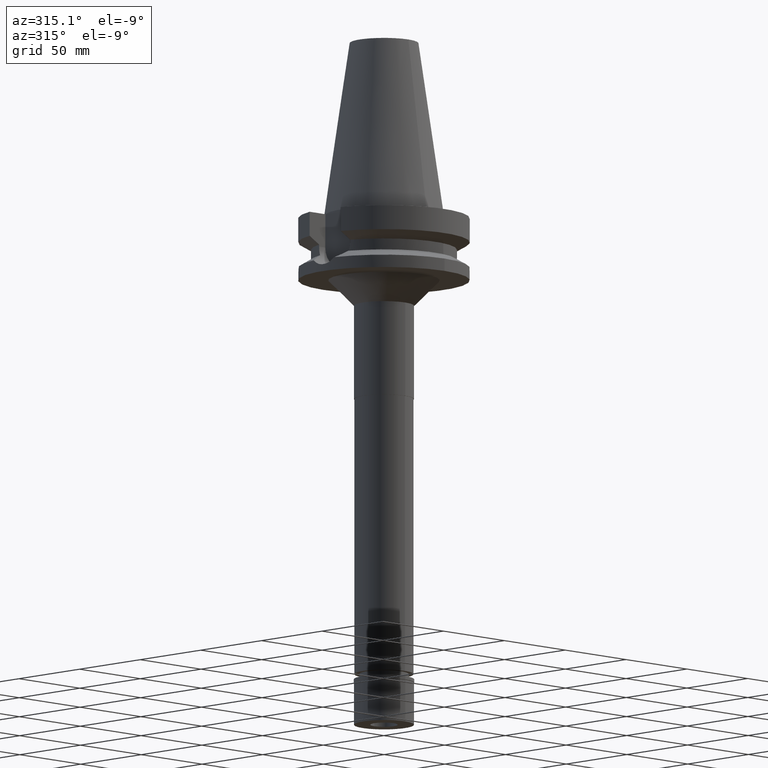
[diagram: clean part render]
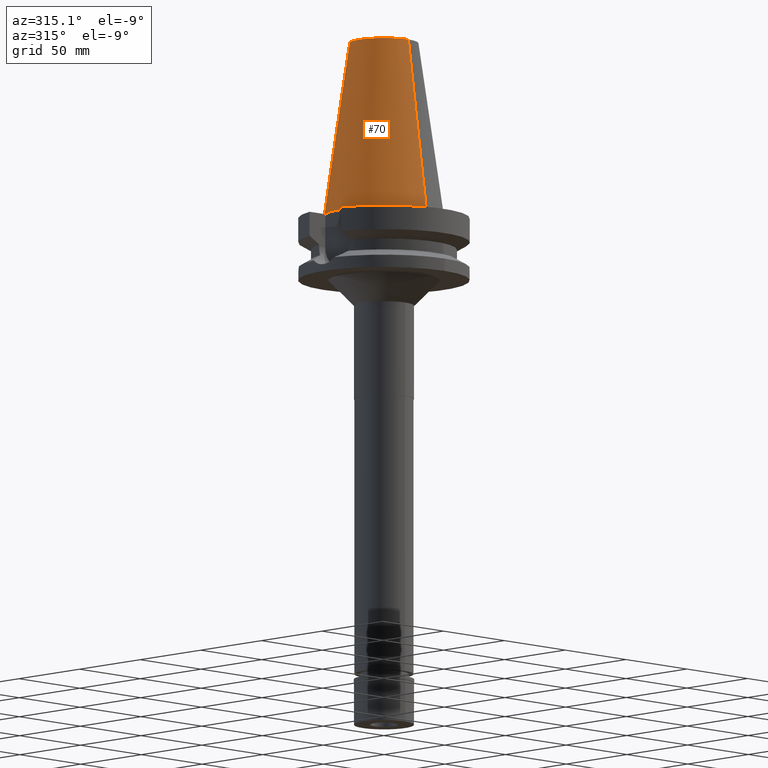
[diagram: same view with one face highlighted and labeled with its STEP entity id]
A machine part, auxiliary view. The second image highlights one B-rep face of the part: STEP entity #70.
In plain terms, the highlighted conical surface has half-angle 8.297 deg.
Its self-contained STEP definition (entity closure, byte-faithful):
#57 = ORIENTED_EDGE ( 'NONE', *, *, #1319, .T. ) ;
#70 = ADVANCED_FACE ( 'NONE', ( #1246 ), #2005, .T. ) ;
#193 = CARTESIAN_POINT ( 'NONE',  ( 0.0000000000000000000, -20.07942971896000017, 101.7999999999999972 ) ) ;
#222 = CARTESIAN_POINT ( 'NONE',  ( 0.0000000000000000000, 20.07942971896000017, 101.7999999999999972 ) ) ;
#295 = DIRECTION ( 'NONE',  ( 0.0000000000000000000, 0.1443043893538948075, -0.9895333461855641000 ) ) ;
#343 = EDGE_CURVE ( 'NONE', #2180, #1528, #2681, .T. ) ;
#434 = CARTESIAN_POINT ( 'NONE',  ( 0.0000000000000000000, -20.07942971896000017, 101.7999999999999972 ) ) ;
#470 = VECTOR ( 'NONE', #295, 1000.000000000000114 ) ;
#540 = CARTESIAN_POINT ( 'NONE',  ( 0.0000000000000000000, 20.07942971896000017, 101.7999999999999972 ) ) ;
#694 = CARTESIAN_POINT ( 'NONE',  ( 0.0000000000000000000, 1.847992019912999597E-14, 50.89999999999999858 ) ) ;
#758 = AXIS2_PLACEMENT_3D ( 'NONE', #1820, #2814, #1802 ) ;
#825 = CARTESIAN_POINT ( 'NONE',  ( 0.0000000000000000000, 1.847992019912999597E-14, 3.979039320256999774E-13 ) ) ;
#846 = AXIS2_PLACEMENT_3D ( 'NONE', #825, #2085, #851 ) ;
#851 = DIRECTION ( 'NONE',  ( 0.0000000000000000000, -1.000000000000000000, 0.0000000000000000000 ) ) ;
#856 = VERTEX_POINT ( 'NONE', #434 ) ;
#915 = LINE ( 'NONE', #193, #1555 ) ;
#1118 = CARTESIAN_POINT ( 'NONE',  ( 0.0000000000000000000, 34.92499999999999716, 5.826450433233000248E-13 ) ) ;
#1246 = FACE_OUTER_BOUND ( 'NONE', #3133, .T. ) ;
#1319 = EDGE_CURVE ( 'NONE', #856, #2636, #2693, .T. ) ;
#1528 = VERTEX_POINT ( 'NONE', #1118 ) ;
#1555 = VECTOR ( 'NONE', #2456, 1000.000000000000114 ) ;
#1696 = AXIS2_PLACEMENT_3D ( 'NONE', #694, #1707, #2485 ) ;
#1707 = DIRECTION ( 'NONE',  ( 0.0000000000000000000, 0.0000000000000000000, -1.000000000000000000 ) ) ;
#1802 = DIRECTION ( 'NONE',  ( 0.0000000000000000000, -1.000000000000000000, 0.0000000000000000000 ) ) ;
#1820 = CARTESIAN_POINT ( 'NONE',  ( 0.0000000000000000000, 1.847992019912999597E-14, 101.7999999999999972 ) ) ;
#1954 = EDGE_CURVE ( 'NONE', #2636, #1528, #2283, .T. ) ;
#2005 = CONICAL_SURFACE ( 'NONE', #1696, 27.50221485948000222, 0.1448099680379422438 ) ;
#2085 = DIRECTION ( 'NONE',  ( 0.0000000000000000000, 0.0000000000000000000, -1.000000000000000000 ) ) ;
#2180 = VERTEX_POINT ( 'NONE', #2518 ) ;
#2283 = LINE ( 'NONE', #540, #470 ) ;
#2351 = EDGE_CURVE ( 'NONE', #856, #2180, #915, .T. ) ;
#2456 = DIRECTION ( 'NONE',  ( 0.0000000000000000000, -0.1443043893538948075, -0.9895333461855641000 ) ) ;
#2485 = DIRECTION ( 'NONE',  ( 0.0000000000000000000, -1.000000000000000000, 0.0000000000000000000 ) ) ;
#2518 = CARTESIAN_POINT ( 'NONE',  ( 0.0000000000000000000, -34.92499999999999716, 5.826450433233000248E-13 ) ) ;
#2622 = ORIENTED_EDGE ( 'NONE', *, *, #2351, .F. ) ;
#2636 = VERTEX_POINT ( 'NONE', #222 ) ;
#2654 = ORIENTED_EDGE ( 'NONE', *, *, #343, .F. ) ;
#2681 = CIRCLE ( 'NONE', #846, 34.92499999999999716 ) ;
#2693 = CIRCLE ( 'NONE', #758, 20.07942971896000017 ) ;
#2736 = ORIENTED_EDGE ( 'NONE', *, *, #1954, .T. ) ;
#2814 = DIRECTION ( 'NONE',  ( 0.0000000000000000000, 0.0000000000000000000, -1.000000000000000000 ) ) ;
#3133 = EDGE_LOOP ( 'NONE', ( #2654, #2622, #57, #2736 ) ) ;